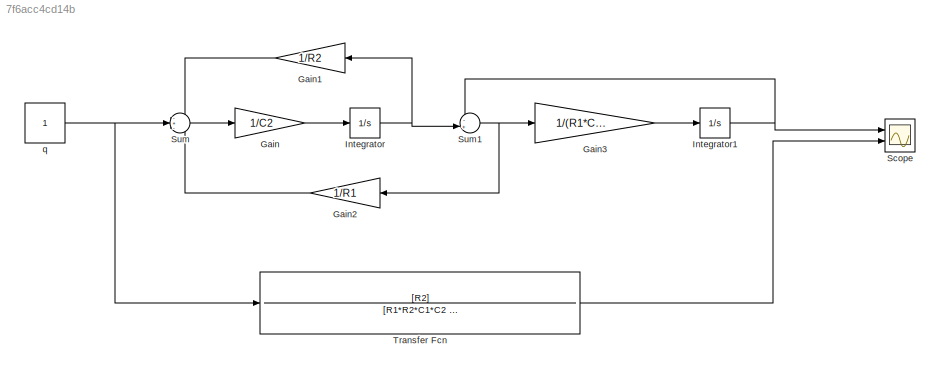
MODEL slx_7f6acc4cd14b
KIND model
CONFIG AbsTol = auto
CONFIG EnableMultiTasking = off
CONFIG FixedStep = auto
CONFIG MaxStep = auto
CONFIG MinStep = auto
CONFIG RelTol = 1e-3
CONFIG SampleTimeConstraint = Unconstrained
CONFIG SolverName = VariableStepAuto
CONFIG StartTime = 0.0
CONFIG StopTime = 2e4
BLOCK [Gain] Gain
  Gain = 1/C2
BLOCK [Gain] Gain1
  Gain = 1/R2
  NameLocation = top
BLOCK [Gain] Gain2
  Gain = 1/R1
  NameLocation = top
BLOCK [Gain] Gain3
  Gain = 1/(R1*C1)
BLOCK [Integrator] Integrator
  Ports = [1, 1]
BLOCK [Integrator] Integrator1
  Ports = [1, 1]
BLOCK [Scope] Scope
  Floating = off
  NumInputPorts = 2
  Ports = [2]
  ScopeSpecificationString = Simulink.scopes.TimeScopeBlockCfg('CurrentConfiguration', extmgr.ConfigurationSet(extmgr.Configuration('Core','General UI',true),extmgr.Configuration('Core','Source UI',true),extmgr.Configuration('Sources','WiredSimulink',true),extmgr.Configuration('Visuals','Time Domain',true,'SerializedDisplays',{struct('MinYLimReal','-3.49545','MaxYLimReal','31.45907','YLabelReal','','MinYLimMag','0.00000','Max...<+1393ch>
BLOCK [Sum] Sum
  Inputs = -+-
  Ports = [3, 1]
BLOCK [Sum] Sum1
  Inputs = -+|
  Ports = [2, 1]
BLOCK [TransferFcn] Transfer Fcn
  Denominator = [R1*R2*C1*C2 C1*R1+C1*R2+R2*C2 1]
  Numerator = [R2]
BLOCK [Constant] q
  SampleTime = -1
  VectorParams1D = off
LINE Gain1:1 -> Sum:1
LINE Gain2:1 -> Sum:3
LINE Gain3:1 -> Integrator1:1
LINE Gain:1 -> Integrator:1
NET Integrator1:1 -> Scope:1, Sum1:1
NET Integrator:1 -> Gain1:1, Sum1:2
NET Sum1:1 -> Gain2:1, Gain3:1
LINE Sum:1 -> Gain:1
LINE Transfer Fcn:1 -> Scope:2
NET q:1 -> Sum:2, Transfer Fcn:1
note: NET lines group one-source signal fan-out (src -> all destinations, sorted); 1:1 wires keep LINE
